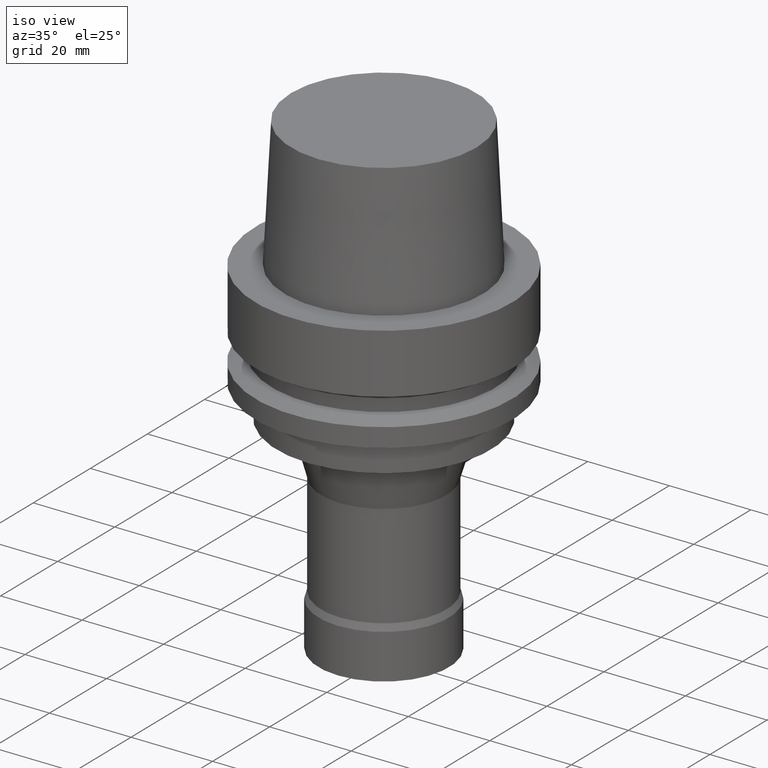
[diagram: clean part render]
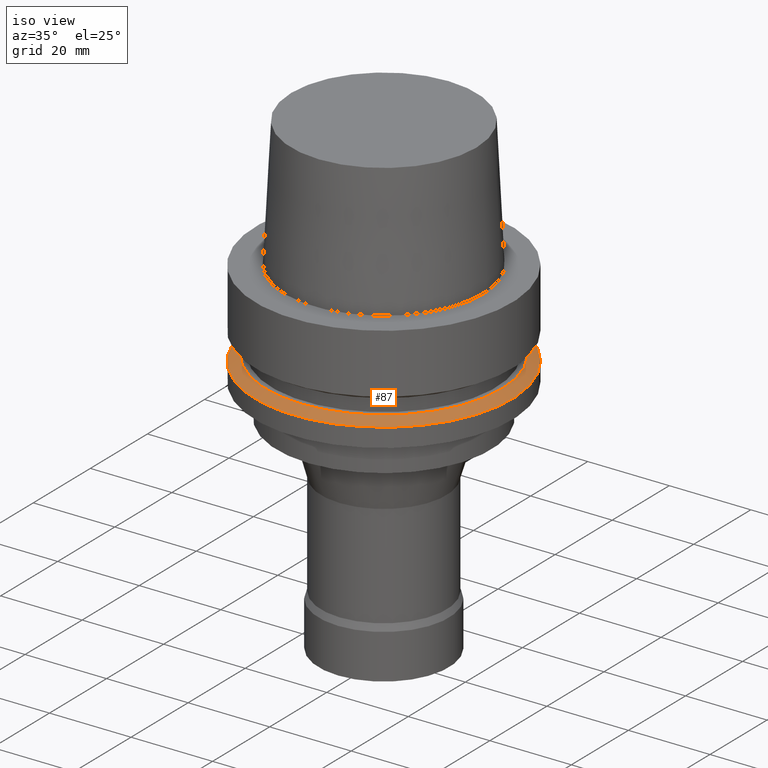
[diagram: same view with one face highlighted and labeled with its STEP entity id]
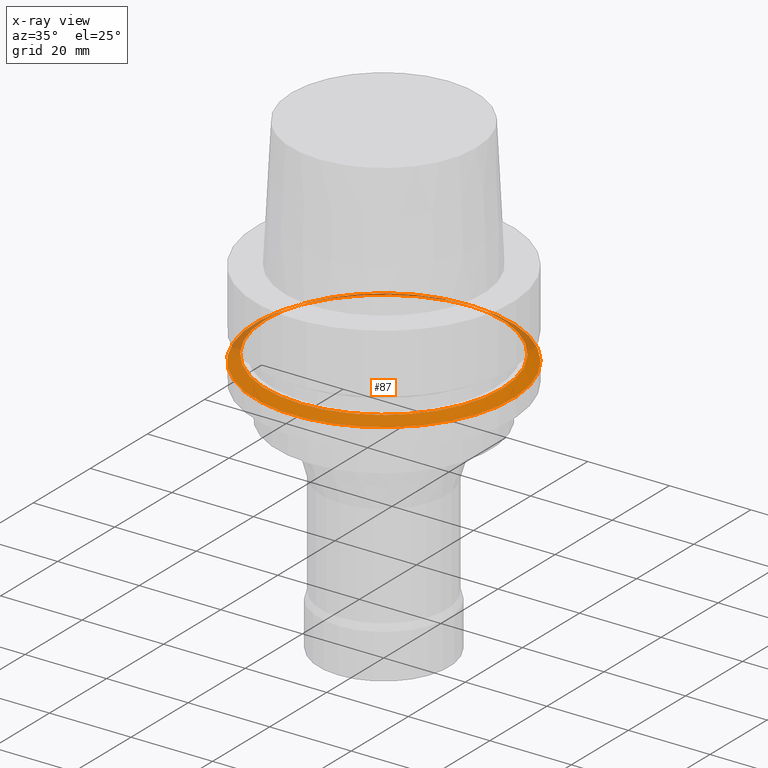
[diagram: x-ray of the same camera — body ghosted, the highlighted face saturated]
A machine part, iso view. The second image highlights one B-rep face of the part: STEP entity #87.
The next image is the same camera in x-ray: the body ghosted, the highlighted face saturated — about 12% of this face is hidden behind the body in this view.
In plain terms, the highlighted conical surface has half-angle 60 deg.
Its self-contained STEP definition (entity closure, byte-faithful):
#87=ADVANCED_FACE('',(#130,#131),#132,.T.);
#130=FACE_BOUND('',#185,.T.);
#131=FACE_BOUND('',#186,.T.);
#132=CONICAL_SURFACE('',#187,30.19879763,1.04719755326565);
#185=EDGE_LOOP('',(#264));
#186=EDGE_LOOP('',(#265));
#187=AXIS2_PLACEMENT_3D('',#266,#267,#268);
#264=ORIENTED_EDGE('',*,*,#311,.F.);
#265=ORIENTED_EDGE('',*,*,#310,.T.);
#266=CARTESIAN_POINT('',(1.26299352357262E-015,2.52598704714523E-015,-20.626249535));
#267=DIRECTION('',(6.12323399573677E-017,1.22464679914735E-016,-1.0));
#268=DIRECTION('',(-1.23259516440783E-032,1.0,1.22464679914735E-016));
#310=EDGE_CURVE('',#340,#340,#341,.T.);
#311=EDGE_CURVE('',#342,#342,#343,.T.);
#340=VERTEX_POINT('',#376);
#341=CIRCLE('',#377,28.89759526);
#342=VERTEX_POINT('',#378);
#343=CIRCLE('',#379,31.5);
#376=CARTESIAN_POINT('',(1.21699275665268E-015,28.89759526,-19.875));
#377=AXIS2_PLACEMENT_3D('',#424,#425,#426);
#378=CARTESIAN_POINT('',(1.30899429049255E-015,31.5,-21.37749907));
#379=AXIS2_PLACEMENT_3D('',#427,#428,#429);
#424=CARTESIAN_POINT('',(1.21699275665268E-015,2.43398551330536E-015,-19.875));
#425=DIRECTION('',(6.12323399573677E-017,1.22464679914735E-016,-1.0));
#426=DIRECTION('',(-1.23259516440783E-032,1.0,1.22464679914735E-016));
#427=CARTESIAN_POINT('',(1.30899429049255E-015,2.6179885809851E-015,-21.37749907));
#428=DIRECTION('',(6.12323399573677E-017,1.22464679914735E-016,-1.0));
#429=DIRECTION('',(-1.23259516440783E-032,1.0,1.22464679914735E-016));